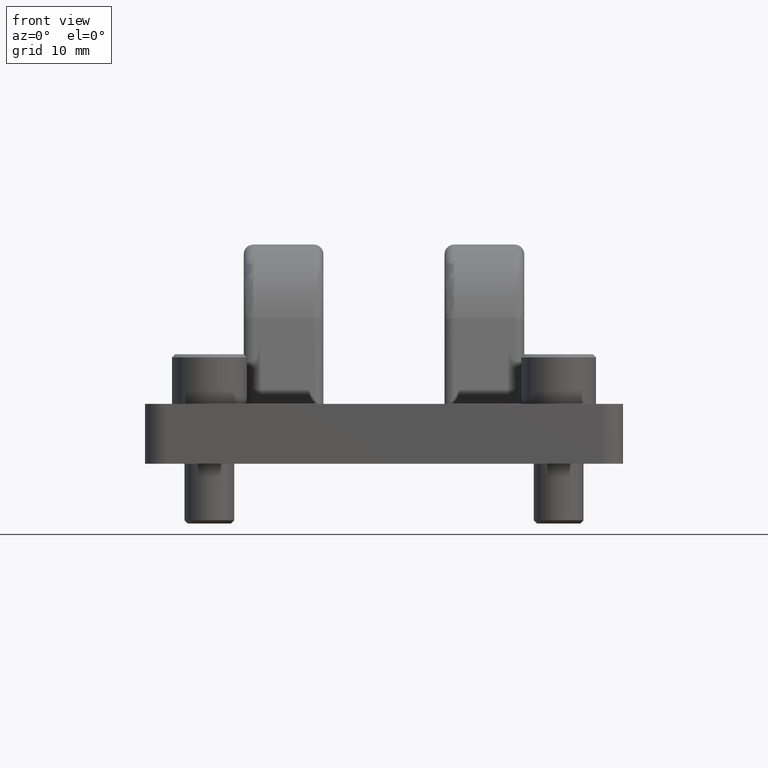
[diagram: clean part render]
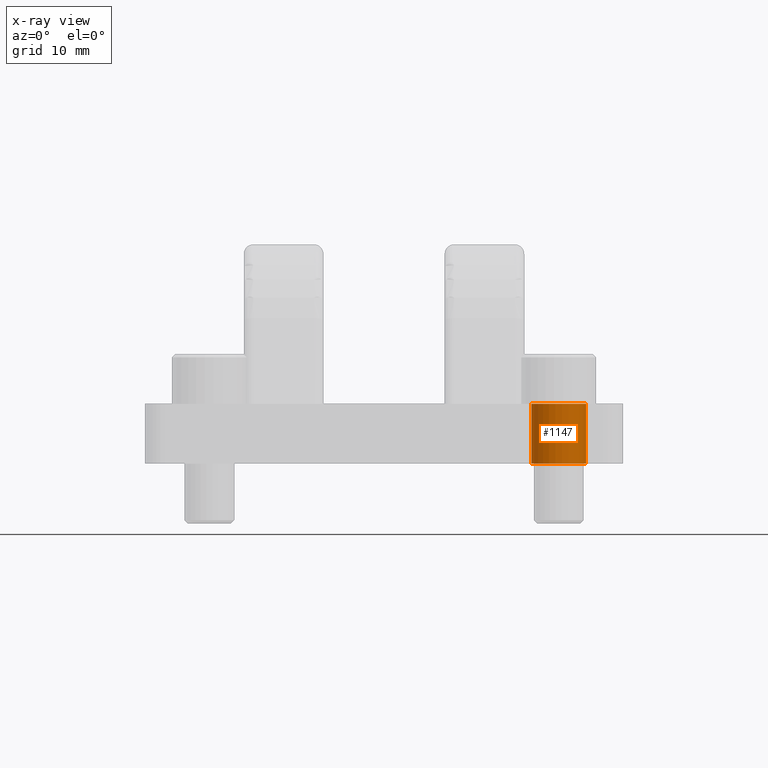
[diagram: x-ray — body ghosted, one internal face saturated and labeled with its STEP entity id]
A machine part, front view, then the same camera in x-ray: the body is ghosted and one INTERNAL B-rep face — a face not visible from any outside direction — is saturated and labeled: STEP entity #1147.
In plain terms, the highlighted cylindrical surface (edge-blend (fillet) strip) has radius 4.3656 mm, axis along (-0, -0, -1).
Its self-contained STEP definition (entity closure, byte-faithful):
#104 = VERTEX_POINT ( 'NONE', #2794 ) ;
#222 = DIRECTION ( 'NONE',  ( -0.0000000000000000000, -0.0000000000000000000, -1.000000000000000000 ) ) ;
#254 = DIRECTION ( 'NONE',  ( -1.000000000000000000, 0.0000000000000000000, 0.0000000000000000000 ) ) ;
#312 = EDGE_CURVE ( 'NONE', #526, #1672, #2224, .T. ) ;
#326 = EDGE_LOOP ( 'NONE', ( #2722, #927, #3018, #3504 ) ) ;
#336 = DIRECTION ( 'NONE',  ( -1.000000000000000000, 0.0000000000000000000, 0.0000000000000000000 ) ) ;
#348 = EDGE_CURVE ( 'NONE', #2126, #104, #483, .T. ) ;
#397 = CARTESIAN_POINT ( 'NONE',  ( 1.267874999999999863, -1.096000000000000307, 0.3750000000000000555 ) ) ;
#483 = LINE ( 'NONE', #2243, #1003 ) ;
#497 = AXIS2_PLACEMENT_3D ( 'NONE', #1922, #3220, #1517 ) ;
#526 = VERTEX_POINT ( 'NONE', #1453 ) ;
#616 = CIRCLE ( 'NONE', #497, 0.1718749999999995282 ) ;
#858 = DIRECTION ( 'NONE',  ( 0.0000000000000000000, 0.0000000000000000000, -1.000000000000000000 ) ) ;
#927 = ORIENTED_EDGE ( 'NONE', *, *, #348, .T. ) ;
#1003 = VECTOR ( 'NONE', #222, 39.37007874015748143 ) ;
#1147 = ADVANCED_FACE ( 'NONE', ( #2128 ), #3548, .F. ) ;
#1372 = DIRECTION ( 'NONE',  ( -0.0000000000000000000, -0.0000000000000000000, -1.000000000000000000 ) ) ;
#1453 = CARTESIAN_POINT ( 'NONE',  ( 0.9241250000000005294, -1.096000000000000307, 0.3750000000000000555 ) ) ;
#1517 = DIRECTION ( 'NONE',  ( -1.000000000000000000, 0.0000000000000000000, 0.0000000000000000000 ) ) ;
#1672 = VERTEX_POINT ( 'NONE', #2809 ) ;
#1918 = DIRECTION ( 'NONE',  ( -0.0000000000000000000, -0.0000000000000000000, -1.000000000000000000 ) ) ;
#1921 = CIRCLE ( 'NONE', #3188, 0.1718749999999996392 ) ;
#1922 = CARTESIAN_POINT ( 'NONE',  ( 1.096000000000000085, -1.096000000000000307, -4.018372309702242118E-17 ) ) ;
#2125 = EDGE_CURVE ( 'NONE', #2126, #526, #1921, .T. ) ;
#2126 = VERTEX_POINT ( 'NONE', #397 ) ;
#2128 = FACE_OUTER_BOUND ( 'NONE', #326, .T. ) ;
#2224 = LINE ( 'NONE', #2522, #2892 ) ;
#2243 = CARTESIAN_POINT ( 'NONE',  ( 1.267874999999999863, -1.096000000000000307, -0.0000000000000000000 ) ) ;
#2522 = CARTESIAN_POINT ( 'NONE',  ( 0.9241250000000005294, -1.096000000000000307, 0.0000000000000000000 ) ) ;
#2541 = CARTESIAN_POINT ( 'NONE',  ( 1.096000000000000085, -1.096000000000000307, -0.0000000000000000000 ) ) ;
#2722 = ORIENTED_EDGE ( 'NONE', *, *, #2125, .F. ) ;
#2794 = CARTESIAN_POINT ( 'NONE',  ( 1.267874999999999641, -1.096000000000000307, -4.018372309702242118E-17 ) ) ;
#2809 = CARTESIAN_POINT ( 'NONE',  ( 0.9241250000000006404, -1.096000000000000307, -4.018372309702242118E-17 ) ) ;
#2892 = VECTOR ( 'NONE', #1918, 39.37007874015748143 ) ;
#2911 = EDGE_CURVE ( 'NONE', #104, #1672, #616, .T. ) ;
#3018 = ORIENTED_EDGE ( 'NONE', *, *, #2911, .T. ) ;
#3168 = AXIS2_PLACEMENT_3D ( 'NONE', #2541, #1372, #254 ) ;
#3188 = AXIS2_PLACEMENT_3D ( 'NONE', #3361, #858, #336 ) ;
#3220 = DIRECTION ( 'NONE',  ( -0.0000000000000000000, -0.0000000000000000000, -1.000000000000000000 ) ) ;
#3361 = CARTESIAN_POINT ( 'NONE',  ( 1.096000000000000085, -1.096000000000000307, 0.3750000000000000555 ) ) ;
#3504 = ORIENTED_EDGE ( 'NONE', *, *, #312, .F. ) ;
#3548 = CYLINDRICAL_SURFACE ( 'NONE', #3168, 0.1718749999999996392 ) ;